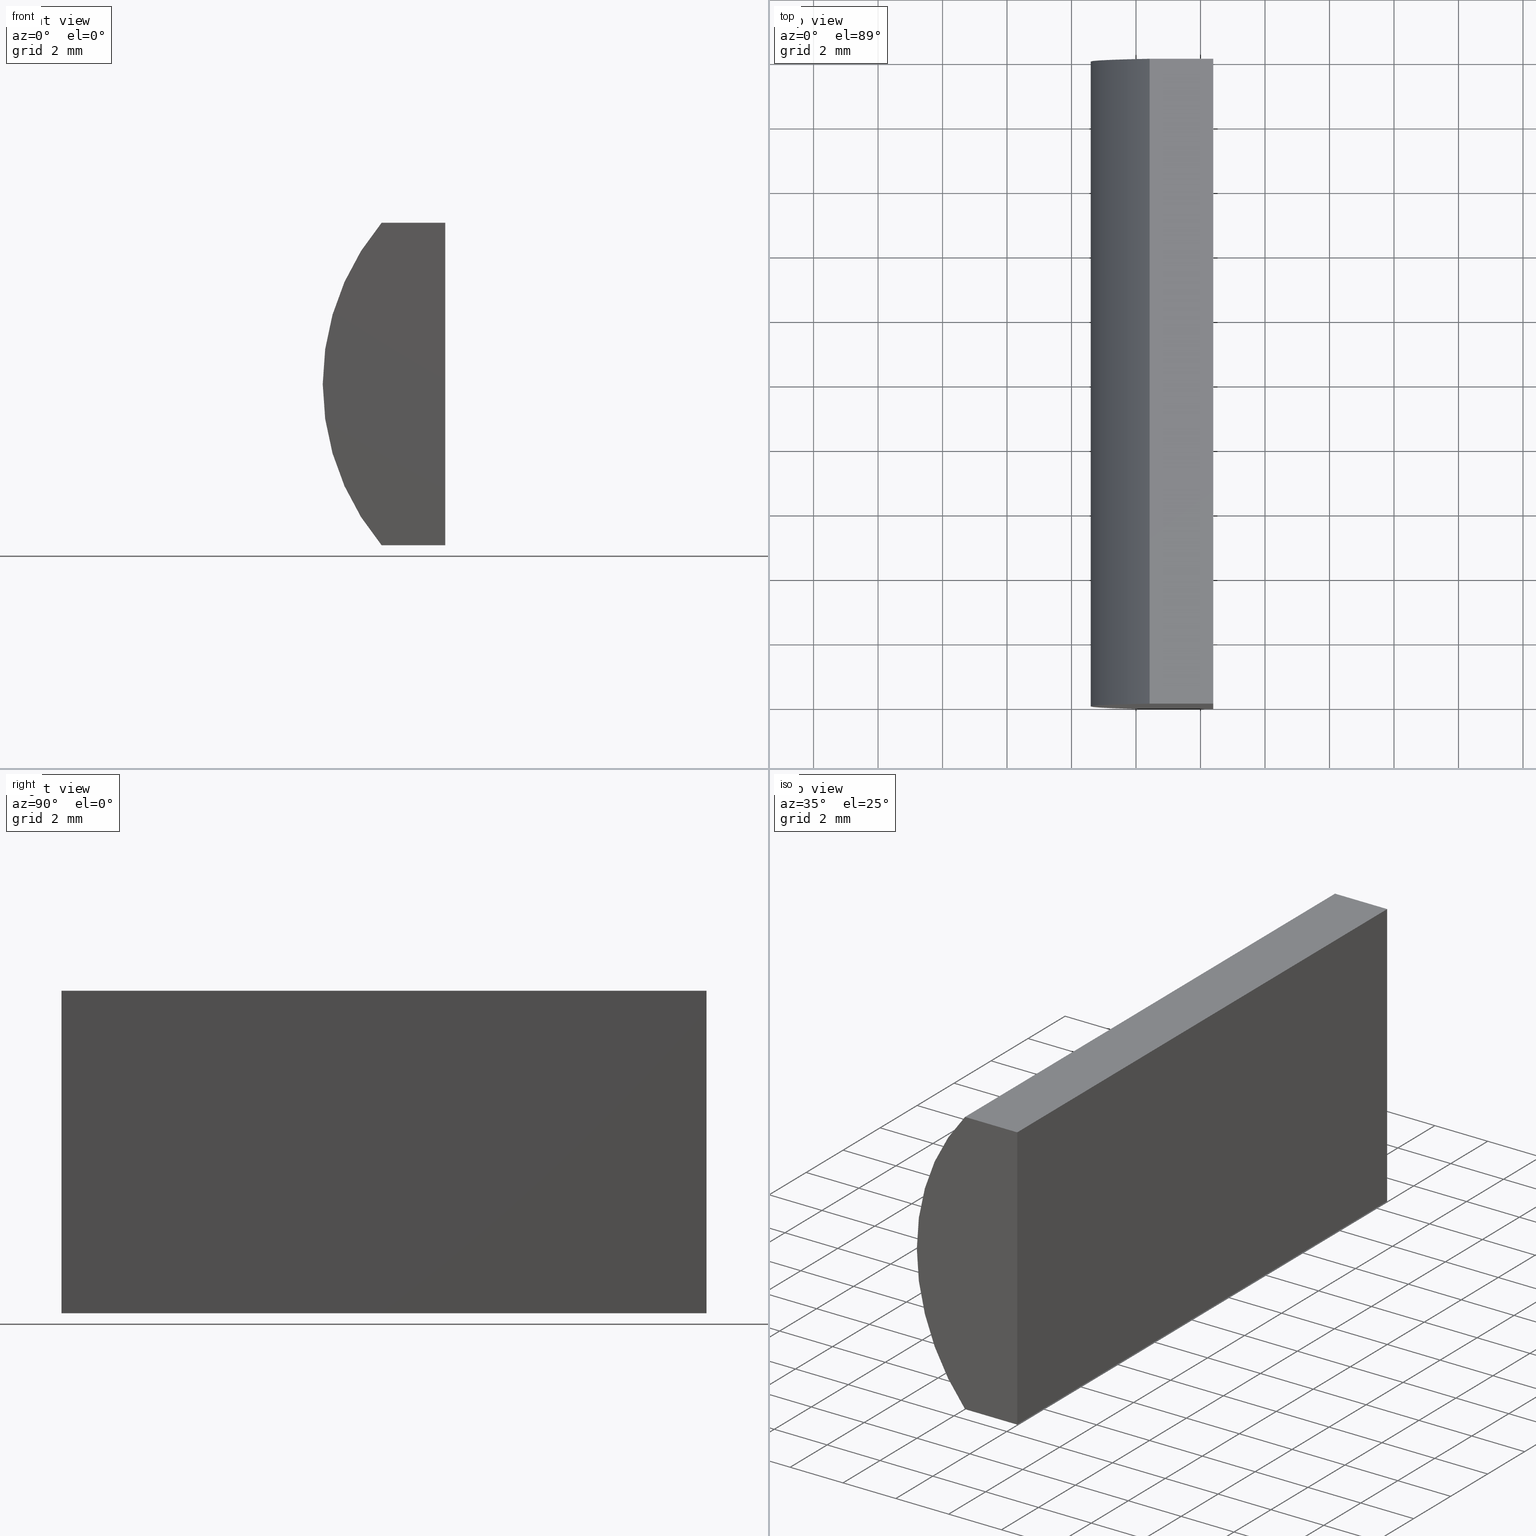
[diagram: canonical four-view strip — front | top / right | iso, engineering-drawing reading convention]
A machine part, canonical four-view strip (front | top / right | iso — engineering-drawing reading convention). The complete STEP part file that produces these views, byte-faithful:
ISO-10303-21;
HEADER;
FILE_DESCRIPTION (( 'STEP AP214' ),
    '1' );
FILE_NAME ('155025.STEP',
    '2019-06-17T05:52:14',
    ( 'user' ),
    ( '΢���й�' ),
    'SwSTEP 2.0',
    'SolidWorks 2016',
    '' );
FILE_SCHEMA (( 'AUTOMOTIVE_DESIGN' ));
ENDSEC;

DATA;
#1 = SHAPE_DEFINITION_REPRESENTATION ( #170, #82 ) ;
#2 =( GEOMETRIC_REPRESENTATION_CONTEXT ( 3 ) GLOBAL_UNCERTAINTY_ASSIGNED_CONTEXT ( ( #13 ) ) GLOBAL_UNIT_ASSIGNED_CONTEXT ( ( #90, #184, #124 ) ) REPRESENTATION_CONTEXT ( 'NONE', 'WORKASPACE' ) );
#3 = EDGE_CURVE ( 'NONE', #70, #60, #109, .T. ) ;
#4 = SURFACE_STYLE_FILL_AREA ( #132 ) ;
#5 = LINE ( 'NONE', #175, #91 ) ;
#6 = DIRECTION ( 'NONE',  ( -3.035766082959411900E-016, -0.0000000000000000000, -1.000000000000000000 ) ) ;
#7 = DIRECTION ( 'NONE',  ( -0.0000000000000000000, -1.000000000000000000, -0.0000000000000000000 ) ) ;
#8 = DIRECTION ( 'NONE',  ( 1.000000000000000000, 0.0000000000000000000, 0.0000000000000000000 ) ) ;
#9 = CARTESIAN_POINT ( 'NONE',  ( -1.579237509164056700, 0.0000000000000000000, -5.000000000000000000 ) ) ;
#10 = EDGE_CURVE ( 'NONE', #189, #72, #159, .T. ) ;
#11 = SURFACE_SIDE_STYLE ('',( #63 ) ) ;
#12 = PRESENTATION_STYLE_ASSIGNMENT (( #138 ) ) ;
#13 = UNCERTAINTY_MEASURE_WITH_UNIT (LENGTH_MEASURE( 1.000000000000000100E-005 ), #90, 'distance_accuracy_value', 'NONE');
#14 = DIRECTION ( 'NONE',  ( 1.000000000000000000, 0.0000000000000000000, 0.0000000000000000000 ) ) ;
#15 = CLOSED_SHELL ( 'NONE', ( #197, #192, #111, #123, #33, #174 ) ) ;
#16 = EDGE_CURVE ( 'NONE', #51, #130, #93, .T. ) ;
#17 = CARTESIAN_POINT ( 'NONE',  ( 0.0000000000000000000, 0.0000000000000000000, 0.0000000000000000000 ) ) ;
#18 = EDGE_LOOP ( 'NONE', ( #139, #69, #118, #36 ) ) ;
#19 = PRODUCT_DEFINITION ( 'δ֪', '', #29, #125 ) ;
#20 = DIRECTION ( 'NONE',  ( -0.0000000000000000000, -1.000000000000000000, -0.0000000000000000000 ) ) ;
#21 = DIRECTION ( 'NONE',  ( 0.0000000000000000000, -0.0000000000000000000, 1.000000000000000000 ) ) ;
#22 = COLOUR_RGB ( '',1.000000000000000000, 1.000000000000000000, 1.000000000000000000 ) ;
#23 = EDGE_CURVE ( 'NONE', #158, #72, #105, .T. ) ;
#24 = DIRECTION ( 'NONE',  ( -0.0000000000000000000, -1.000000000000000000, -0.0000000000000000000 ) ) ;
#25 = EDGE_LOOP ( 'NONE', ( #115, #68, #166, #202 ) ) ;
#26 = ORIENTED_EDGE ( 'NONE', *, *, #110, .F. ) ;
#27 = AXIS2_PLACEMENT_3D ( 'NONE', #163, #96, #77 ) ;
#28 = DIRECTION ( 'NONE',  ( -1.000000000000000000, -0.0000000000000000000, 8.785892991656771100E-016 ) ) ;
#29 = PRODUCT_DEFINITION_FORMATION_WITH_SPECIFIED_SOURCE ( '�κ�', '', #119, .NOT_KNOWN. ) ;
#30 = VERTEX_POINT ( 'NONE', #56 ) ;
#31 =( NAMED_UNIT ( * ) SI_UNIT ( $, .STERADIAN. ) SOLID_ANGLE_UNIT ( ) );
#32 = EDGE_LOOP ( 'NONE', ( #154, #53, #134, #107 ) ) ;
#33 = ADVANCED_FACE ( 'NONE', ( #86 ), #140, .T. ) ;
#34 = CARTESIAN_POINT ( 'NONE',  ( 4.355204334851265500, 20.00000000000000000, 4.286263797015675000E-017 ) ) ;
#35 = CARTESIAN_POINT ( 'NONE',  ( -1.579237509164056900, 20.00000000000000000, 5.000000000000000000 ) ) ;
#36 = ORIENTED_EDGE ( 'NONE', *, *, #145, .T. ) ;
#37 = DIRECTION ( 'NONE',  ( -3.035766082959411900E-016, -0.0000000000000000000, -1.000000000000000000 ) ) ;
#38 = APPLICATION_PROTOCOL_DEFINITION ( 'draft international standard', 'automotive_design', 1998, #61 ) ;
#39 = COLOUR_RGB ( '',1.000000000000000000, 1.000000000000000000, 1.000000000000000000 ) ;
#40 = VECTOR ( 'NONE', #142, 1000.000000000000000 ) ;
#41 = ORIENTED_EDGE ( 'NONE', *, *, #108, .F. ) ;
#42 = FACE_OUTER_BOUND ( 'NONE', #196, .T. ) ;
#43 = CARTESIAN_POINT ( 'NONE',  ( 0.3952043348512633800, 20.00000000000000000, -5.000000000000001800 ) ) ;
#44 = CARTESIAN_POINT ( 'NONE',  ( -1.579237509164056900, 0.0000000000000000000, 5.000000000000000000 ) ) ;
#45 = DIRECTION ( 'NONE',  ( 0.0000000000000000000, 0.0000000000000000000, 1.000000000000000000 ) ) ;
#46 = CARTESIAN_POINT ( 'NONE',  ( -1.579237509164056900, 20.00000000000000000, 5.000000000000000000 ) ) ;
#47 = MANIFOLD_SOLID_BREP ( '͹̨-����1', #15 ) ;
#48 = ORIENTED_EDGE ( 'NONE', *, *, #16, .T. ) ;
#49 = FILL_AREA_STYLE_COLOUR ( '', #39 ) ;
#50 = MECHANICAL_DESIGN_GEOMETRIC_PRESENTATION_REPRESENTATION (  '', ( #66 ), #198 ) ;
#51 = VERTEX_POINT ( 'NONE', #152 ) ;
#52 = DIRECTION ( 'NONE',  ( 0.0000000000000000000, 1.000000000000000000, 0.0000000000000000000 ) ) ;
#53 = ORIENTED_EDGE ( 'NONE', *, *, #180, .F. ) ;
#54 =( GEOMETRIC_REPRESENTATION_CONTEXT ( 3 ) GLOBAL_UNCERTAINTY_ASSIGNED_CONTEXT ( ( #100 ) ) GLOBAL_UNIT_ASSIGNED_CONTEXT ( ( #116, #65, #31 ) ) REPRESENTATION_CONTEXT ( 'NONE', 'WORKASPACE' ) );
#55 = CARTESIAN_POINT ( 'NONE',  ( 0.3952043348512633800, 20.00000000000000000, -5.000000000000001800 ) ) ;
#56 = CARTESIAN_POINT ( 'NONE',  ( 0.3952043348512664400, 20.00000000000000000, 5.000000000000000000 ) ) ;
#57 = APPLICATION_PROTOCOL_DEFINITION ( 'draft international standard', 'automotive_design', 1998, #94 ) ;
#58 = ORIENTED_EDGE ( 'NONE', *, *, #16, .F. ) ;
#59 = DIRECTION ( 'NONE',  ( -1.000000000000000000, 0.0000000000000000000, -0.0000000000000000000 ) ) ;
#60 = VERTEX_POINT ( 'NONE', #103 ) ;
#61 = APPLICATION_CONTEXT ( 'automotive_design' ) ;
#62 = ORIENTED_EDGE ( 'NONE', *, *, #3, .F. ) ;
#63 = SURFACE_STYLE_FILL_AREA ( #83 ) ;
#64 = PLANE ( 'NONE',  #27 ) ;
#65 =( NAMED_UNIT ( * ) PLANE_ANGLE_UNIT ( ) SI_UNIT ( $, .RADIAN. ) );
#66 = STYLED_ITEM ( 'NONE', ( #12 ), #47 ) ;
#67 = LINE ( 'NONE', #43, #122 ) ;
#68 = ORIENTED_EDGE ( 'NONE', *, *, #117, .F. ) ;
#69 = ORIENTED_EDGE ( 'NONE', *, *, #141, .T. ) ;
#70 = VERTEX_POINT ( 'NONE', #179 ) ;
#71 = PRODUCT_CONTEXT ( 'NONE', #61, 'mechanical' ) ;
#72 = VERTEX_POINT ( 'NONE', #204 ) ;
#73 = PLANE ( 'NONE',  #92 ) ;
#74 = FACE_OUTER_BOUND ( 'NONE', #32, .T. ) ;
#75 = PRESENTATION_LAYER_ASSIGNMENT (  '', '', ( #66 ) ) ;
#76 = CARTESIAN_POINT ( 'NONE',  ( 0.3952043348512633800, 20.00000000000000000, -5.000000000000001800 ) ) ;
#77 = DIRECTION ( 'NONE',  ( 1.000000000000000000, 0.0000000000000000000, -8.785892991656772100E-016 ) ) ;
#78 = AXIS2_PLACEMENT_3D ( 'NONE', #169, #200, #59 ) ;
#79 = CARTESIAN_POINT ( 'NONE',  ( -1.579237509164056700, 20.00000000000000000, -5.000000000000000000 ) ) ;
#80 = CARTESIAN_POINT ( 'NONE',  ( 4.355204334851265500, 20.00000000000000000, 4.286263797015675000E-017 ) ) ;
#81 = EDGE_CURVE ( 'NONE', #60, #130, #161, .T. ) ;
#82 = ADVANCED_BREP_SHAPE_REPRESENTATION ( '155025', ( #47, #112 ), #54 ) ;
#83 = FILL_AREA_STYLE ('',( #49 ) ) ;
#84 = CARTESIAN_POINT ( 'NONE',  ( 4.355204334851265500, 0.0000000000000000000, 4.286263797015675000E-017 ) ) ;
#85 = VECTOR ( 'NONE', #193, 1000.000000000000000 ) ;
#86 = FACE_OUTER_BOUND ( 'NONE', #18, .T. ) ;
#87 = STYLED_ITEM ( 'NONE', ( #185 ), #82 ) ;
#88 = DIRECTION ( 'NONE',  ( 0.0000000000000000000, 0.0000000000000000000, -1.000000000000000000 ) ) ;
#89 = AXIS2_PLACEMENT_3D ( 'NONE', #84, #144, #21 ) ;
#90 =( LENGTH_UNIT ( ) NAMED_UNIT ( * ) SI_UNIT ( .MILLI., .METRE. ) );
#91 = VECTOR ( 'NONE', #7, 1000.000000000000000 ) ;
#92 = AXIS2_PLACEMENT_3D ( 'NONE', #55, #186, #114 ) ;
#93 = CIRCLE ( 'NONE', #194, 7.759999999999998000 ) ;
#94 = APPLICATION_CONTEXT ( 'automotive_design' ) ;
#95 = PRESENTATION_LAYER_ASSIGNMENT (  '', '', ( #87 ) ) ;
#96 = DIRECTION ( 'NONE',  ( 8.785892991656772100E-016, -0.0000000000000000000, 1.000000000000000000 ) ) ;
#97 = VECTOR ( 'NONE', #20, 1000.000000000000000 ) ;
#98 = SURFACE_SIDE_STYLE ('',( #4 ) ) ;
#99 = PRODUCT_RELATED_PRODUCT_CATEGORY ( 'part', '', ( #119 ) ) ;
#100 = UNCERTAINTY_MEASURE_WITH_UNIT (LENGTH_MEASURE( 1.000000000000000100E-005 ), #116, 'distance_accuracy_value', 'NONE');
#101 =( LENGTH_UNIT ( ) NAMED_UNIT ( * ) SI_UNIT ( .MILLI., .METRE. ) );
#102 = EDGE_LOOP ( 'NONE', ( #199, #143, #183, #162 ) ) ;
#103 = CARTESIAN_POINT ( 'NONE',  ( -1.579237509164056900, 20.00000000000000000, 5.000000000000000000 ) ) ;
#104 = DIRECTION ( 'NONE',  ( 0.0000000000000000000, 1.000000000000000000, 0.0000000000000000000 ) ) ;
#105 = LINE ( 'NONE', #129, #191 ) ;
#106 = MECHANICAL_DESIGN_GEOMETRIC_PRESENTATION_REPRESENTATION (  '', ( #87 ), #2 ) ;
#107 = ORIENTED_EDGE ( 'NONE', *, *, #81, .T. ) ;
#108 = EDGE_CURVE ( 'NONE', #130, #158, #160, .T. ) ;
#109 = CIRCLE ( 'NONE', #127, 7.759999999999998000 ) ;
#110 = EDGE_CURVE ( 'NONE', #72, #51, #182, .T. ) ;
#111 = ADVANCED_FACE ( 'NONE', ( #201 ), #73, .F. ) ;
#112 = AXIS2_PLACEMENT_3D ( 'NONE', #17, #131, #8 ) ;
#113 = FACE_OUTER_BOUND ( 'NONE', #25, .T. ) ;
#114 = DIRECTION ( 'NONE',  ( 3.035766082959411900E-016, 0.0000000000000000000, 1.000000000000000000 ) ) ;
#115 = ORIENTED_EDGE ( 'NONE', *, *, #110, .T. ) ;
#116 =( LENGTH_UNIT ( ) NAMED_UNIT ( * ) SI_UNIT ( .MILLI., .METRE. ) );
#117 = EDGE_CURVE ( 'NONE', #70, #51, #177, .T. ) ;
#118 = ORIENTED_EDGE ( 'NONE', *, *, #137, .T. ) ;
#119 = PRODUCT ( '155025', '155025', '', ( #71 ) ) ;
#120 = DIRECTION ( 'NONE',  ( 1.000000000000000000, 0.0000000000000000000, 0.0000000000000000000 ) ) ;
#121 = FILL_AREA_STYLE_COLOUR ( '', #22 ) ;
#122 = VECTOR ( 'NONE', #37, 1000.000000000000000 ) ;
#123 = ADVANCED_FACE ( 'NONE', ( #113 ), #64, .F. ) ;
#124 =( NAMED_UNIT ( * ) SI_UNIT ( $, .STERADIAN. ) SOLID_ANGLE_UNIT ( ) );
#125 = PRODUCT_DEFINITION_CONTEXT ( 'detailed design', #94, 'design' ) ;
#126 = DIRECTION ( 'NONE',  ( 0.0000000000000000000, 1.000000000000000000, 0.0000000000000000000 ) ) ;
#127 = AXIS2_PLACEMENT_3D ( 'NONE', #188, #52, #176 ) ;
#128 = ORIENTED_EDGE ( 'NONE', *, *, #81, .F. ) ;
#129 = CARTESIAN_POINT ( 'NONE',  ( 0.3952043348512633800, 0.0000000000000000000, -5.000000000000001800 ) ) ;
#130 = VERTEX_POINT ( 'NONE', #172 ) ;
#131 = DIRECTION ( 'NONE',  ( 0.0000000000000000000, 0.0000000000000000000, 1.000000000000000000 ) ) ;
#132 = FILL_AREA_STYLE ('',( #121 ) ) ;
#133 = CARTESIAN_POINT ( 'NONE',  ( 0.3952043348512633800, 20.00000000000000000, -5.000000000000001800 ) ) ;
#134 = ORIENTED_EDGE ( 'NONE', *, *, #141, .F. ) ;
#135 = ORIENTED_EDGE ( 'NONE', *, *, #117, .T. ) ;
#136 = CARTESIAN_POINT ( 'NONE',  ( 0.3952043348512664400, 0.0000000000000000000, 5.000000000000000000 ) ) ;
#137 = EDGE_CURVE ( 'NONE', #30, #189, #67, .T. ) ;
#138 = SURFACE_STYLE_USAGE ( .BOTH. , #98 ) ;
#139 = ORIENTED_EDGE ( 'NONE', *, *, #3, .T. ) ;
#140 = PLANE ( 'NONE',  #150 ) ;
#141 = EDGE_CURVE ( 'NONE', #60, #30, #181, .T. ) ;
#142 = DIRECTION ( 'NONE',  ( -1.000000000000000000, -0.0000000000000000000, 8.785892991656771100E-016 ) ) ;
#143 = ORIENTED_EDGE ( 'NONE', *, *, #10, .F. ) ;
#144 = DIRECTION ( 'NONE',  ( 0.0000000000000000000, 1.000000000000000000, 0.0000000000000000000 ) ) ;
#145 = EDGE_CURVE ( 'NONE', #189, #70, #167, .T. ) ;
#146 = PLANE ( 'NONE',  #78 ) ;
#147 = DIRECTION ( 'NONE',  ( -0.0000000000000000000, -1.000000000000000000, -0.0000000000000000000 ) ) ;
#148 = UNCERTAINTY_MEASURE_WITH_UNIT (LENGTH_MEASURE( 1.000000000000000100E-005 ), #101, 'distance_accuracy_value', 'NONE');
#149 = FACE_OUTER_BOUND ( 'NONE', #187, .T. ) ;
#150 = AXIS2_PLACEMENT_3D ( 'NONE', #34, #104, #190 ) ;
#151 = SURFACE_STYLE_USAGE ( .BOTH. , #11 ) ;
#152 = CARTESIAN_POINT ( 'NONE',  ( -1.579237509164056700, 0.0000000000000000000, -5.000000000000000000 ) ) ;
#153 = CYLINDRICAL_SURFACE ( 'NONE', #165, 7.759999999999998000 ) ;
#154 = ORIENTED_EDGE ( 'NONE', *, *, #108, .T. ) ;
#155 = CARTESIAN_POINT ( 'NONE',  ( -1.579237509164056700, 20.00000000000000000, -5.000000000000000000 ) ) ;
#156 = VECTOR ( 'NONE', #147, 1000.000000000000000 ) ;
#157 = PLANE ( 'NONE',  #89 ) ;
#158 = VERTEX_POINT ( 'NONE', #136 ) ;
#159 = LINE ( 'NONE', #76, #97 ) ;
#160 = LINE ( 'NONE', #44, #171 ) ;
#161 = LINE ( 'NONE', #46, #156 ) ;
#162 = ORIENTED_EDGE ( 'NONE', *, *, #180, .T. ) ;
#163 = CARTESIAN_POINT ( 'NONE',  ( -1.579237509164056700, 20.00000000000000000, -5.000000000000000000 ) ) ;
#164 =( NAMED_UNIT ( * ) PLANE_ANGLE_UNIT ( ) SI_UNIT ( $, .RADIAN. ) );
#165 = AXIS2_PLACEMENT_3D ( 'NONE', #80, #24, #88 ) ;
#166 = ORIENTED_EDGE ( 'NONE', *, *, #145, .F. ) ;
#167 = LINE ( 'NONE', #79, #203 ) ;
#168 = ORIENTED_EDGE ( 'NONE', *, *, #23, .F. ) ;
#169 = CARTESIAN_POINT ( 'NONE',  ( -1.579237509164056900, 20.00000000000000000, 5.000000000000000000 ) ) ;
#170 = PRODUCT_DEFINITION_SHAPE ( 'NONE', 'NONE',  #19 ) ;
#171 = VECTOR ( 'NONE', #14, 1000.000000000000000 ) ;
#172 = CARTESIAN_POINT ( 'NONE',  ( -1.579237509164056900, 0.0000000000000000000, 5.000000000000000000 ) ) ;
#173 = VECTOR ( 'NONE', #120, 1000.000000000000000 ) ;
#174 = ADVANCED_FACE ( 'NONE', ( #149 ), #157, .F. ) ;
#175 = CARTESIAN_POINT ( 'NONE',  ( 0.3952043348512664400, 20.00000000000000000, 5.000000000000000000 ) ) ;
#176 = DIRECTION ( 'NONE',  ( 0.0000000000000000000, 0.0000000000000000000, 1.000000000000000000 ) ) ;
#177 = LINE ( 'NONE', #155, #85 ) ;
#178 =( NAMED_UNIT ( * ) SI_UNIT ( $, .STERADIAN. ) SOLID_ANGLE_UNIT ( ) );
#179 = CARTESIAN_POINT ( 'NONE',  ( -1.579237509164056700, 20.00000000000000000, -5.000000000000000000 ) ) ;
#180 = EDGE_CURVE ( 'NONE', #30, #158, #5, .T. ) ;
#181 = LINE ( 'NONE', #35, #173 ) ;
#182 = LINE ( 'NONE', #9, #40 ) ;
#183 = ORIENTED_EDGE ( 'NONE', *, *, #137, .F. ) ;
#184 =( NAMED_UNIT ( * ) PLANE_ANGLE_UNIT ( ) SI_UNIT ( $, .RADIAN. ) );
#185 = PRESENTATION_STYLE_ASSIGNMENT (( #151 ) ) ;
#186 = DIRECTION ( 'NONE',  ( -1.000000000000000000, 0.0000000000000000000, 3.035766082959411900E-016 ) ) ;
#187 = EDGE_LOOP ( 'NONE', ( #58, #26, #168, #41 ) ) ;
#188 = CARTESIAN_POINT ( 'NONE',  ( 4.355204334851265500, 20.00000000000000000, 4.286263797015675000E-017 ) ) ;
#189 = VERTEX_POINT ( 'NONE', #133 ) ;
#190 = DIRECTION ( 'NONE',  ( 0.0000000000000000000, -0.0000000000000000000, 1.000000000000000000 ) ) ;
#191 = VECTOR ( 'NONE', #6, 1000.000000000000000 ) ;
#192 = ADVANCED_FACE ( 'NONE', ( #74 ), #146, .F. ) ;
#193 = DIRECTION ( 'NONE',  ( -0.0000000000000000000, -1.000000000000000000, -0.0000000000000000000 ) ) ;
#194 = AXIS2_PLACEMENT_3D ( 'NONE', #195, #126, #45 ) ;
#195 = CARTESIAN_POINT ( 'NONE',  ( 4.355204334851265500, 0.0000000000000000000, 4.286263797015675000E-017 ) ) ;
#196 = EDGE_LOOP ( 'NONE', ( #48, #128, #62, #135 ) ) ;
#197 = ADVANCED_FACE ( 'NONE', ( #42 ), #153, .T. ) ;
#198 =( GEOMETRIC_REPRESENTATION_CONTEXT ( 3 ) GLOBAL_UNCERTAINTY_ASSIGNED_CONTEXT ( ( #148 ) ) GLOBAL_UNIT_ASSIGNED_CONTEXT ( ( #101, #164, #178 ) ) REPRESENTATION_CONTEXT ( 'NONE', 'WORKASPACE' ) );
#199 = ORIENTED_EDGE ( 'NONE', *, *, #23, .T. ) ;
#200 = DIRECTION ( 'NONE',  ( 0.0000000000000000000, 0.0000000000000000000, -1.000000000000000000 ) ) ;
#201 = FACE_OUTER_BOUND ( 'NONE', #102, .T. ) ;
#202 = ORIENTED_EDGE ( 'NONE', *, *, #10, .T. ) ;
#203 = VECTOR ( 'NONE', #28, 1000.000000000000000 ) ;
#204 = CARTESIAN_POINT ( 'NONE',  ( 0.3952043348512633800, 0.0000000000000000000, -5.000000000000001800 ) ) ;
ENDSEC;
END-ISO-10303-21;
